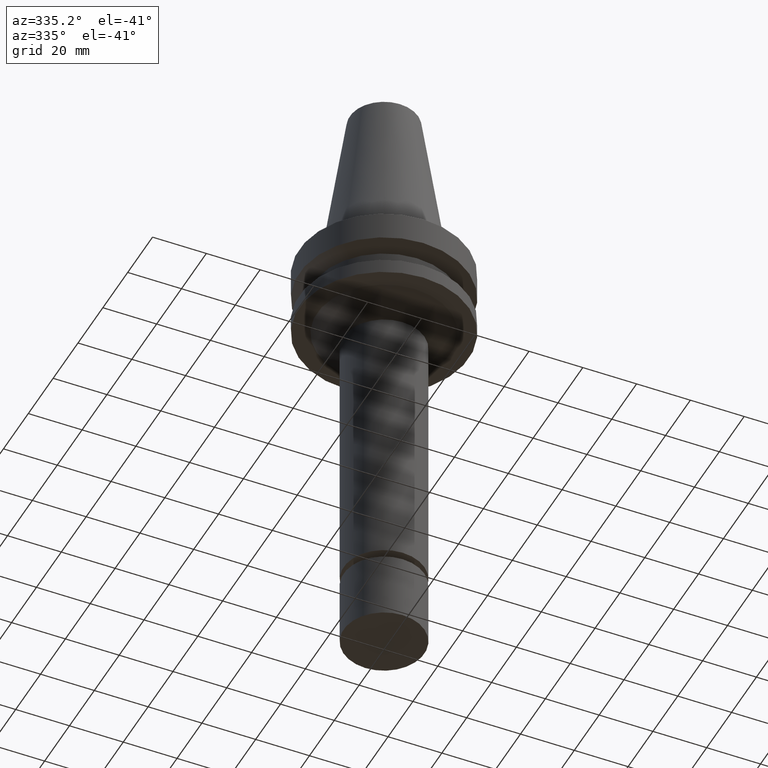
[diagram: clean part render]
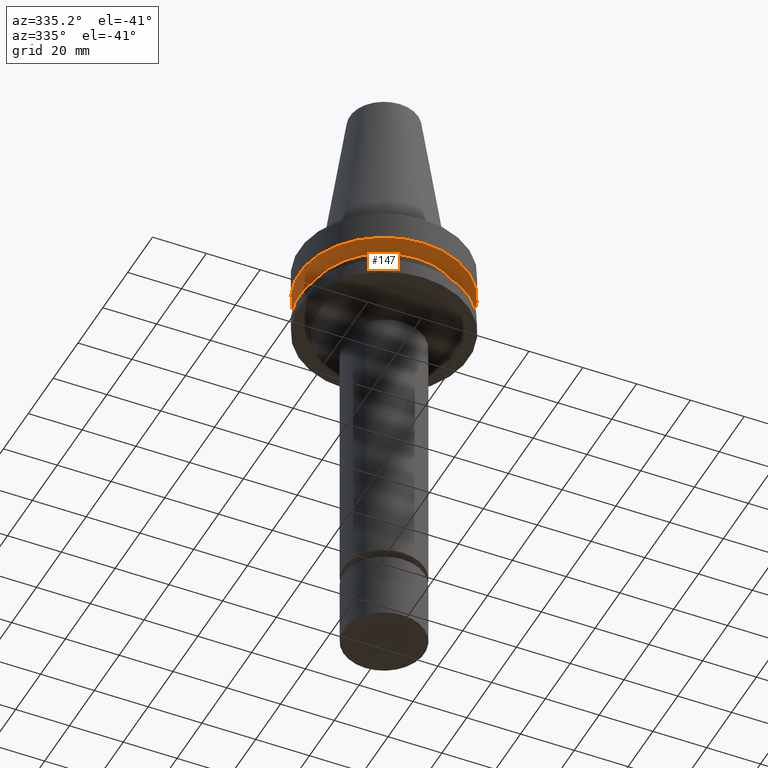
[diagram: same view with one face highlighted and labeled with its STEP entity id]
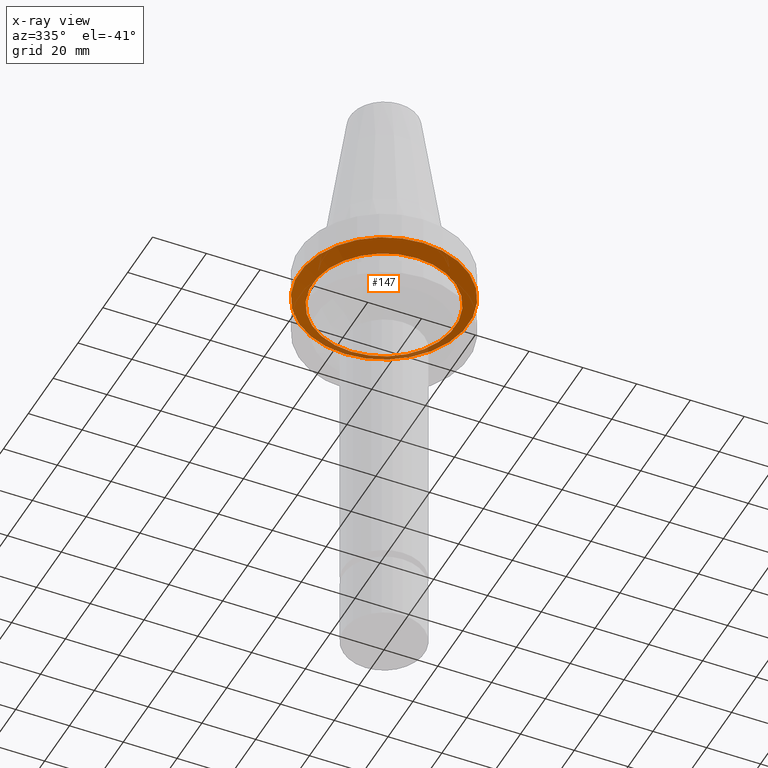
[diagram: x-ray of the same camera — body ghosted, the highlighted face saturated]
A machine part, auxiliary view. The second image highlights one B-rep face of the part: STEP entity #147.
The next image is the same camera in x-ray: the body ghosted, the highlighted face saturated — about 11% of this face is hidden behind the body in this view.
In plain terms, the highlighted conical surface has half-angle 60 deg.
Its self-contained STEP definition (entity closure, byte-faithful):
#126=EDGE_CURVE('Unnamed[1]',#279,#279,#280,.T.);
#132=EDGE_CURVE('Unnamed[1]',#288,#288,#289,.T.);
#147=ADVANCED_FACE('Unnamed[1]',(#309,#310),#311,.T.);
#279=VERTEX_POINT('',#472);
#280=CIRCLE('',#473,31.5000000000003);
#288=VERTEX_POINT('',#484);
#289=CIRCLE('',#485,26.4999999999994);
#309=FACE_BOUND('',#511,.T.);
#310=FACE_BOUND('',#512,.T.);
#311=CONICAL_SURFACE('',#513,28.9999999999999,1.04719755119657);
#472=CARTESIAN_POINT('',(7.08182973902924E-016,31.5000000000004,-11.5655056526664));
#473=AXIS2_PLACEMENT_3D('',#665,#666,#667);
#484=CARTESIAN_POINT('',(8.8494551369045E-016,26.4999999999995,-14.4522569986152));
#485=AXIS2_PLACEMENT_3D('',#674,#675,#676);
#511=EDGE_LOOP('',(#697));
#512=EDGE_LOOP('',(#698));
#513=AXIS2_PLACEMENT_3D('',#699,#700,#701);
#665=CARTESIAN_POINT('',(7.08182973902924E-016,7.20402582967684E-014,-11.5655056526664));
#666=DIRECTION('',(6.12323399573677E-017,-6.57737920631997E-017,-1.0));
#667=DIRECTION('',(-7.99669534871208E-034,1.0,-6.57737920631997E-017));
#674=CARTESIAN_POINT('',(8.84945513690451E-016,7.18503857140021E-014,-14.4522569986152));
#675=DIRECTION('',(6.12323399573677E-017,-6.57737920628767E-017,-1.0));
#676=DIRECTION('',(-7.99669534893151E-034,1.0,-6.57737920628767E-017));
#697=ORIENTED_EDGE('',*,*,#132,.F.);
#698=ORIENTED_EDGE('',*,*,#126,.T.);
#699=CARTESIAN_POINT('',(7.96564243796687E-016,7.19453220053852E-014,-13.0088813256408));
#700=DIRECTION('',(-6.12323399573677E-017,6.57737920630521E-017,1.0));
#701=DIRECTION('',(-7.99669534868863E-034,1.0,-6.57737920630521E-017));